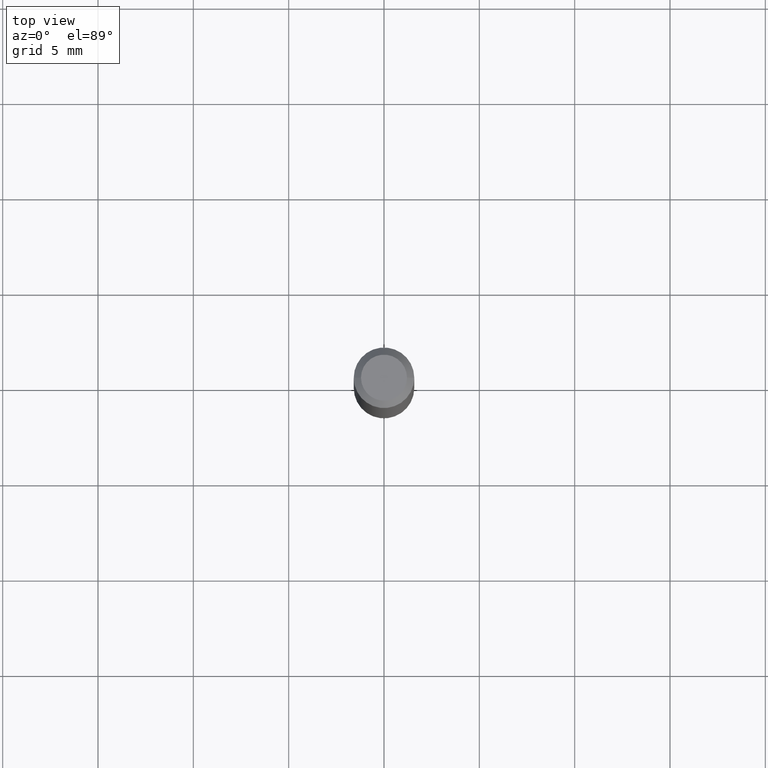
[diagram: clean part render]
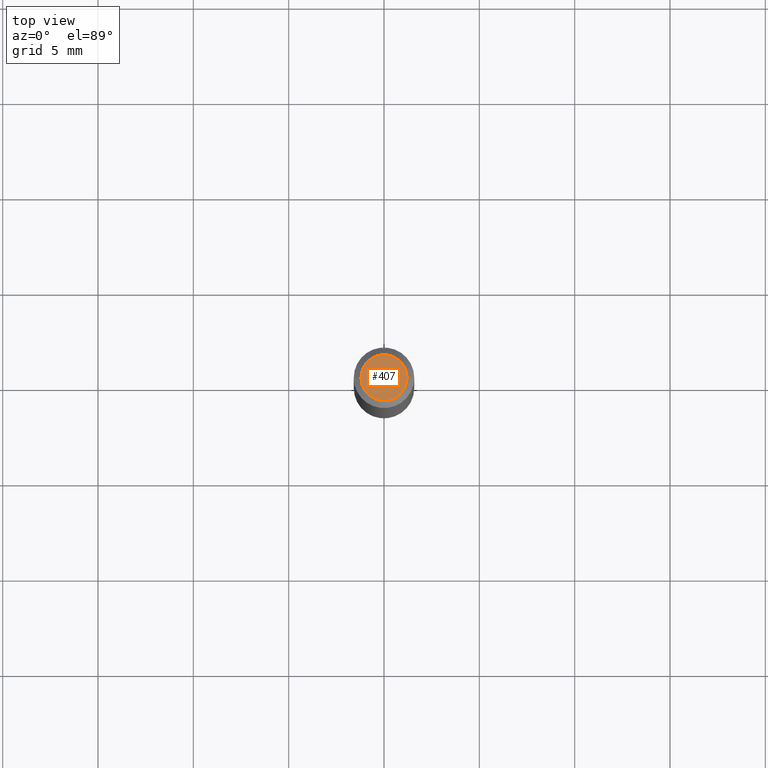
[diagram: same view with one face highlighted and labeled with its STEP entity id]
A machine part, top view. The second image highlights one B-rep face of the part: STEP entity #407.
In plain terms, the highlighted planar face has unit normal (0, -0, -1).
Its self-contained STEP definition (entity closure, byte-faithful):
#4 = DIRECTION ( 'NONE',  ( 1.000000000000000000, -6.982962677686266711E-15, 4.852736867747365086E-29 ) ) ;
#59 = FACE_OUTER_BOUND ( 'NONE', #85, .T. ) ;
#85 = EDGE_LOOP ( 'NONE', ( #359, #195 ) ) ;
#90 = AXIS2_PLACEMENT_3D ( 'NONE', #112, #269, #4 ) ;
#112 = CARTESIAN_POINT ( 'NONE',  ( -6.680649051745406845E-45, 9.538196290434862081E-31, 2.731847993664263218E-16 ) ) ;
#121 = CIRCLE ( 'NONE', #90, 0.04750000000000000749 ) ;
#134 = DIRECTION ( 'NONE',  ( 2.438088387897960049E-29, -3.491481338843145188E-15, -1.000000000000000000 ) ) ;
#171 = CIRCLE ( 'NONE', #409, 0.04750000000000000749 ) ;
#195 = ORIENTED_EDGE ( 'NONE', *, *, #302, .T. ) ;
#208 = VERTEX_POINT ( 'NONE', #224 ) ;
#214 = DIRECTION ( 'NONE',  ( -1.000000000000000000, 6.982962677686265922E-15, -4.876176775795935793E-29 ) ) ;
#224 = CARTESIAN_POINT ( 'NONE',  ( -0.04750000000000000749, 3.578768372314221353E-16, 2.731847993664239060E-16 ) ) ;
#243 = DIRECTION ( 'NONE',  ( -2.445468806185136597E-29, 3.491481338843145583E-15, 1.000000000000000000 ) ) ;
#251 = CARTESIAN_POINT ( 'NONE',  ( 3.316907271900976589E-16, 0.04750000000000000749, -2.925296391183627249E-17 ) ) ;
#269 = DIRECTION ( 'NONE',  ( -2.445468806185136597E-29, 3.491481338843145583E-15, 1.000000000000000000 ) ) ;
#302 = EDGE_CURVE ( 'NONE', #445, #208, #121, .T. ) ;
#318 = DIRECTION ( 'NONE',  ( 1.000000000000000000, -6.982962677686266711E-15, 4.852736867747365086E-29 ) ) ;
#322 = EDGE_CURVE ( 'NONE', #208, #445, #171, .T. ) ;
#359 = ORIENTED_EDGE ( 'NONE', *, *, #322, .T. ) ;
#370 = CARTESIAN_POINT ( 'NONE',  ( 0.04750000000000000749, -4.035134999187568762E-16, 2.731847993664288856E-16 ) ) ;
#407 = ADVANCED_FACE ( 'NONE', ( #59 ), #488, .F. ) ;
#409 = AXIS2_PLACEMENT_3D ( 'NONE', #437, #243, #318 ) ;
#437 = CARTESIAN_POINT ( 'NONE',  ( -6.680649051745406845E-45, 9.538196290434862081E-31, 2.731847993664263218E-16 ) ) ;
#445 = VERTEX_POINT ( 'NONE', #370 ) ;
#468 = AXIS2_PLACEMENT_3D ( 'NONE', #251, #134, #214 ) ;
#488 = PLANE ( 'NONE',  #468 ) ;